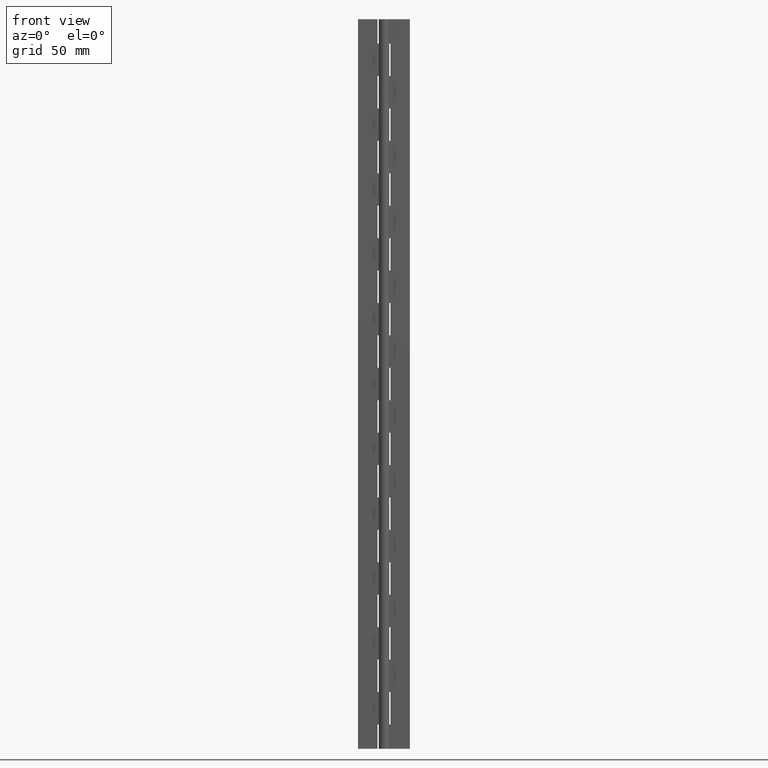
[diagram: clean part render]
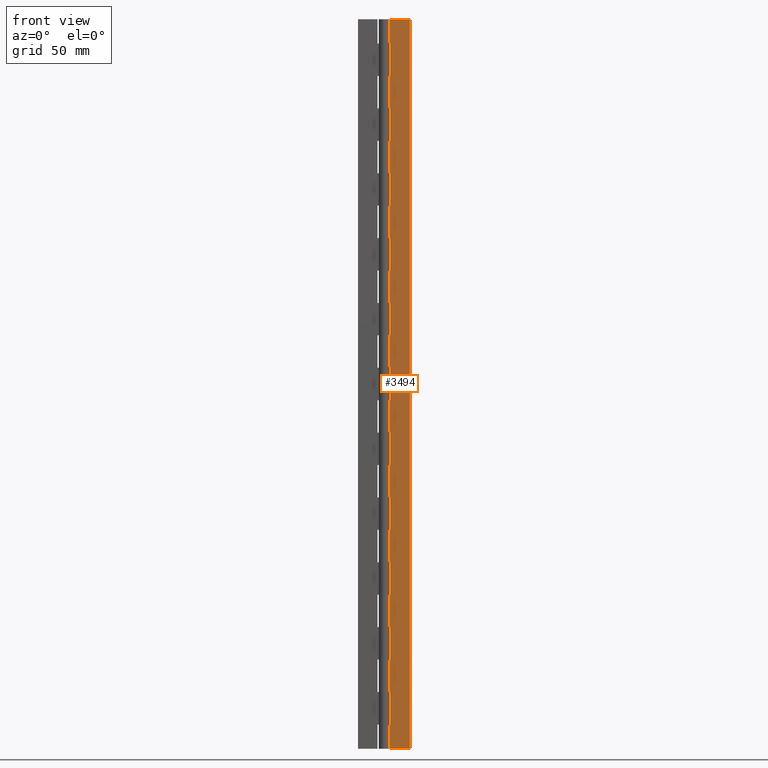
[diagram: same view with one face highlighted and labeled with its STEP entity id]
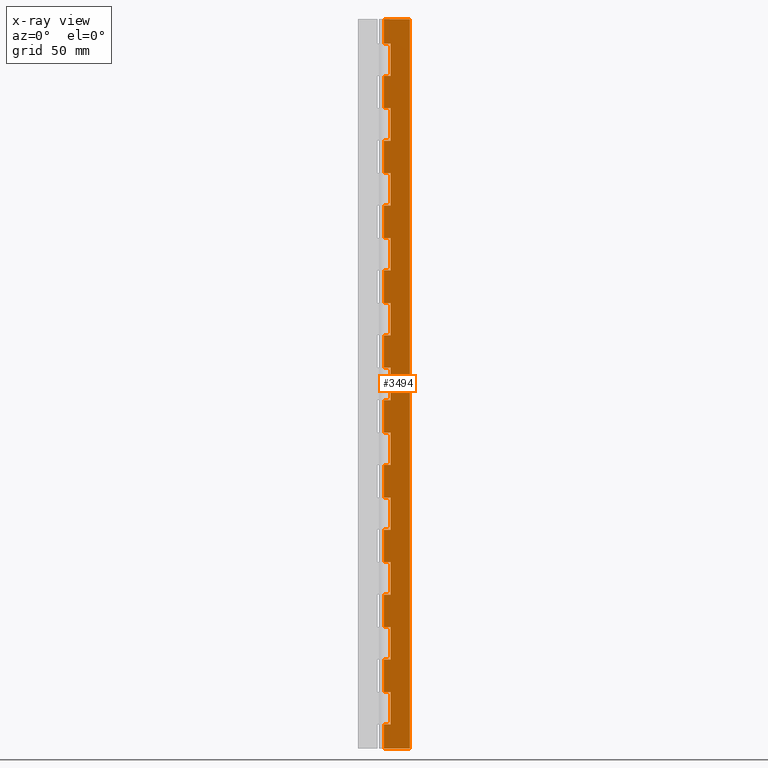
[diagram: x-ray of the same camera — body ghosted, the highlighted face saturated]
A machine part, front view. The second image highlights one B-rep face of the part: STEP entity #3494.
The next image is the same camera in x-ray: the body ghosted, the highlighted face saturated — about 0% of this face is hidden behind the body in this view.
In plain terms, the highlighted face is a freeform B-spline surface patch.
Its self-contained STEP definition (entity closure, byte-faithful):
#300=CARTESIAN_POINT('',(0.0,1.750000000000000,35.000021999999952));
#301=VERTEX_POINT('',#300);
#358=CARTESIAN_POINT('',(4.0,1.750000000000030,35.000021999999952));
#359=VERTEX_POINT('',#358);
#365=CARTESIAN_POINT('',(0.0,1.750000000000000,35.000021999999952));
#366=CARTESIAN_POINT('',(4.0,1.750000000000030,35.000021999999952));
#367=QUASI_UNIFORM_CURVE('',1,(#365,#366),.UNSPECIFIED.,.F.,.U.);
#368=EDGE_CURVE('',#301,#359,#367,.T.);
#386=CARTESIAN_POINT('',(4.0,1.750000000000030,15.000022000000000));
#387=VERTEX_POINT('',#386);
#393=CARTESIAN_POINT('',(4.0,1.750000000000030,35.000021999999952));
#394=CARTESIAN_POINT('',(4.0,1.750000000000030,15.000022000000000));
#395=QUASI_UNIFORM_CURVE('',1,(#393,#394),.UNSPECIFIED.,.F.,.U.);
#396=EDGE_CURVE('',#359,#387,#395,.T.);
#442=CARTESIAN_POINT('',(0.0,1.750000000000000,15.000021999999950));
#443=VERTEX_POINT('',#442);
#463=CARTESIAN_POINT('',(4.0,1.750000000000030,15.000022000000000));
#464=CARTESIAN_POINT('',(0.0,1.750000000000000,15.000021999999950));
#465=QUASI_UNIFORM_CURVE('',1,(#463,#464),.UNSPECIFIED.,.F.,.U.);
#466=EDGE_CURVE('',#387,#443,#465,.T.);
#476=CARTESIAN_POINT('',(0.0,1.750000000000000,75.000022000000001));
#477=VERTEX_POINT('',#476);
#534=CARTESIAN_POINT('',(4.0,1.750000000000030,75.000022000000001));
#535=VERTEX_POINT('',#534);
#541=CARTESIAN_POINT('',(0.0,1.750000000000000,75.000022000000001));
#542=CARTESIAN_POINT('',(4.0,1.750000000000030,75.000022000000001));
#543=QUASI_UNIFORM_CURVE('',1,(#541,#542),.UNSPECIFIED.,.F.,.U.);
#544=EDGE_CURVE('',#477,#535,#543,.T.);
#562=CARTESIAN_POINT('',(4.0,1.750000000000030,55.000022000000001));
#563=VERTEX_POINT('',#562);
#569=CARTESIAN_POINT('',(4.0,1.750000000000030,75.000022000000001));
#570=CARTESIAN_POINT('',(4.0,1.750000000000030,55.000022000000001));
#571=QUASI_UNIFORM_CURVE('',1,(#569,#570),.UNSPECIFIED.,.F.,.U.);
#572=EDGE_CURVE('',#535,#563,#571,.T.);
#618=CARTESIAN_POINT('',(0.0,1.750000000000000,55.000022000000001));
#619=VERTEX_POINT('',#618);
#639=CARTESIAN_POINT('',(4.0,1.750000000000030,55.000022000000001));
#640=CARTESIAN_POINT('',(0.0,1.750000000000000,55.000022000000001));
#641=QUASI_UNIFORM_CURVE('',1,(#639,#640),.UNSPECIFIED.,.F.,.U.);
#642=EDGE_CURVE('',#563,#619,#641,.T.);
#652=CARTESIAN_POINT('',(0.0,1.750000000000000,115.000022000000000));
#653=VERTEX_POINT('',#652);
#710=CARTESIAN_POINT('',(4.0,1.750000000000030,115.000022000000000));
#711=VERTEX_POINT('',#710);
#717=CARTESIAN_POINT('',(0.0,1.750000000000000,115.000022000000000));
#718=CARTESIAN_POINT('',(4.0,1.750000000000030,115.000022000000000));
#719=QUASI_UNIFORM_CURVE('',1,(#717,#718),.UNSPECIFIED.,.F.,.U.);
#720=EDGE_CURVE('',#653,#711,#719,.T.);
#738=CARTESIAN_POINT('',(4.0,1.750000000000030,95.000022000000001));
#739=VERTEX_POINT('',#738);
#745=CARTESIAN_POINT('',(4.0,1.750000000000030,115.000022000000000));
#746=CARTESIAN_POINT('',(4.0,1.750000000000030,95.000022000000001));
#747=QUASI_UNIFORM_CURVE('',1,(#745,#746),.UNSPECIFIED.,.F.,.U.);
#748=EDGE_CURVE('',#711,#739,#747,.T.);
#794=CARTESIAN_POINT('',(0.0,1.750000000000000,95.000022000000001));
#795=VERTEX_POINT('',#794);
#815=CARTESIAN_POINT('',(4.0,1.750000000000030,95.000022000000001));
#816=CARTESIAN_POINT('',(0.0,1.750000000000000,95.000022000000001));
#817=QUASI_UNIFORM_CURVE('',1,(#815,#816),.UNSPECIFIED.,.F.,.U.);
#818=EDGE_CURVE('',#739,#795,#817,.T.);
#828=CARTESIAN_POINT('',(0.0,1.750000000000000,155.000022000000000));
#829=VERTEX_POINT('',#828);
#886=CARTESIAN_POINT('',(4.0,1.750000000000030,155.000022000000000));
#887=VERTEX_POINT('',#886);
#893=CARTESIAN_POINT('',(0.0,1.750000000000000,155.000022000000000));
#894=CARTESIAN_POINT('',(4.0,1.750000000000030,155.000022000000000));
#895=QUASI_UNIFORM_CURVE('',1,(#893,#894),.UNSPECIFIED.,.F.,.U.);
#896=EDGE_CURVE('',#829,#887,#895,.T.);
#914=CARTESIAN_POINT('',(4.0,1.750000000000030,135.000022000000000));
#915=VERTEX_POINT('',#914);
#921=CARTESIAN_POINT('',(4.0,1.750000000000030,155.000022000000000));
#922=CARTESIAN_POINT('',(4.0,1.750000000000030,135.000022000000000));
#923=QUASI_UNIFORM_CURVE('',1,(#921,#922),.UNSPECIFIED.,.F.,.U.);
#924=EDGE_CURVE('',#887,#915,#923,.T.);
#970=CARTESIAN_POINT('',(0.0,1.750000000000000,135.000022000000000));
#971=VERTEX_POINT('',#970);
#991=CARTESIAN_POINT('',(4.0,1.750000000000030,135.000022000000000));
#992=CARTESIAN_POINT('',(0.0,1.750000000000000,135.000022000000000));
#993=QUASI_UNIFORM_CURVE('',1,(#991,#992),.UNSPECIFIED.,.F.,.U.);
#994=EDGE_CURVE('',#915,#971,#993,.T.);
#1004=CARTESIAN_POINT('',(0.0,1.750000000000000,195.000022000000000));
#1005=VERTEX_POINT('',#1004);
#1062=CARTESIAN_POINT('',(4.0,1.750000000000030,195.000022000000000));
#1063=VERTEX_POINT('',#1062);
#1069=CARTESIAN_POINT('',(0.0,1.750000000000000,195.000022000000000));
#1070=CARTESIAN_POINT('',(4.0,1.750000000000030,195.000022000000000));
#1071=QUASI_UNIFORM_CURVE('',1,(#1069,#1070),.UNSPECIFIED.,.F.,.U.);
#1072=EDGE_CURVE('',#1005,#1063,#1071,.T.);
#1090=CARTESIAN_POINT('',(4.0,1.750000000000030,175.000022000000000));
#1091=VERTEX_POINT('',#1090);
#1097=CARTESIAN_POINT('',(4.0,1.750000000000030,195.000022000000000));
#1098=CARTESIAN_POINT('',(4.0,1.750000000000030,175.000022000000000));
#1099=QUASI_UNIFORM_CURVE('',1,(#1097,#1098),.UNSPECIFIED.,.F.,.U.);
#1100=EDGE_CURVE('',#1063,#1091,#1099,.T.);
#1146=CARTESIAN_POINT('',(0.0,1.750000000000000,175.000022000000000));
#1147=VERTEX_POINT('',#1146);
#1167=CARTESIAN_POINT('',(4.0,1.750000000000030,175.000022000000000));
#1168=CARTESIAN_POINT('',(0.0,1.750000000000000,175.000022000000000));
#1169=QUASI_UNIFORM_CURVE('',1,(#1167,#1168),.UNSPECIFIED.,.F.,.U.);
#1170=EDGE_CURVE('',#1091,#1147,#1169,.T.);
#1180=CARTESIAN_POINT('',(0.0,1.750000000000000,235.000022000000000));
#1181=VERTEX_POINT('',#1180);
#1238=CARTESIAN_POINT('',(4.0,1.750000000000030,235.000022000000000));
#1239=VERTEX_POINT('',#1238);
#1245=CARTESIAN_POINT('',(0.0,1.750000000000000,235.000022000000000));
#1246=CARTESIAN_POINT('',(4.0,1.750000000000030,235.000022000000000));
#1247=QUASI_UNIFORM_CURVE('',1,(#1245,#1246),.UNSPECIFIED.,.F.,.U.);
#1248=EDGE_CURVE('',#1181,#1239,#1247,.T.);
#1266=CARTESIAN_POINT('',(4.0,1.750000000000030,215.000022000000000));
#1267=VERTEX_POINT('',#1266);
#1273=CARTESIAN_POINT('',(4.0,1.750000000000030,235.000022000000000));
#1274=CARTESIAN_POINT('',(4.0,1.750000000000030,215.000022000000000));
#1275=QUASI_UNIFORM_CURVE('',1,(#1273,#1274),.UNSPECIFIED.,.F.,.U.);
#1276=EDGE_CURVE('',#1239,#1267,#1275,.T.);
#1322=CARTESIAN_POINT('',(0.0,1.750000000000000,215.000022000000000));
#1323=VERTEX_POINT('',#1322);
#1343=CARTESIAN_POINT('',(4.0,1.750000000000030,215.000022000000000));
#1344=CARTESIAN_POINT('',(0.0,1.750000000000000,215.000022000000000));
#1345=QUASI_UNIFORM_CURVE('',1,(#1343,#1344),.UNSPECIFIED.,.F.,.U.);
#1346=EDGE_CURVE('',#1267,#1323,#1345,.T.);
#1356=CARTESIAN_POINT('',(0.0,1.750000000000000,275.000022000000000));
#1357=VERTEX_POINT('',#1356);
#1414=CARTESIAN_POINT('',(4.0,1.750000000000030,275.000022000000000));
#1415=VERTEX_POINT('',#1414);
#1421=CARTESIAN_POINT('',(0.0,1.750000000000000,275.000022000000000));
#1422=CARTESIAN_POINT('',(4.0,1.750000000000030,275.000022000000000));
#1423=QUASI_UNIFORM_CURVE('',1,(#1421,#1422),.UNSPECIFIED.,.F.,.U.);
#1424=EDGE_CURVE('',#1357,#1415,#1423,.T.);
#1442=CARTESIAN_POINT('',(4.0,1.750000000000030,255.000022000000000));
#1443=VERTEX_POINT('',#1442);
#1449=CARTESIAN_POINT('',(4.0,1.750000000000030,275.000022000000000));
#1450=CARTESIAN_POINT('',(4.0,1.750000000000030,255.000022000000000));
#1451=QUASI_UNIFORM_CURVE('',1,(#1449,#1450),.UNSPECIFIED.,.F.,.U.);
#1452=EDGE_CURVE('',#1415,#1443,#1451,.T.);
#1498=CARTESIAN_POINT('',(0.0,1.750000000000000,255.000022000000000));
#1499=VERTEX_POINT('',#1498);
#1519=CARTESIAN_POINT('',(4.0,1.750000000000030,255.000022000000000));
#1520=CARTESIAN_POINT('',(0.0,1.750000000000000,255.000022000000000));
#1521=QUASI_UNIFORM_CURVE('',1,(#1519,#1520),.UNSPECIFIED.,.F.,.U.);
#1522=EDGE_CURVE('',#1443,#1499,#1521,.T.);
#1532=CARTESIAN_POINT('',(0.0,1.750000000000000,315.000022000000000));
#1533=VERTEX_POINT('',#1532);
#1590=CARTESIAN_POINT('',(4.0,1.750000000000030,315.000022000000000));
#1591=VERTEX_POINT('',#1590);
#1597=CARTESIAN_POINT('',(0.0,1.750000000000000,315.000022000000000));
#1598=CARTESIAN_POINT('',(4.0,1.750000000000030,315.000022000000000));
#1599=QUASI_UNIFORM_CURVE('',1,(#1597,#1598),.UNSPECIFIED.,.F.,.U.);
#1600=EDGE_CURVE('',#1533,#1591,#1599,.T.);
#1618=CARTESIAN_POINT('',(4.0,1.750000000000030,295.000021999999890));
#1619=VERTEX_POINT('',#1618);
#1625=CARTESIAN_POINT('',(4.0,1.750000000000030,315.000022000000000));
#1626=CARTESIAN_POINT('',(4.0,1.750000000000030,295.000021999999890));
#1627=QUASI_UNIFORM_CURVE('',1,(#1625,#1626),.UNSPECIFIED.,.F.,.U.);
#1628=EDGE_CURVE('',#1591,#1619,#1627,.T.);
#1674=CARTESIAN_POINT('',(0.0,1.750000000000000,295.000021999999890));
#1675=VERTEX_POINT('',#1674);
#1695=CARTESIAN_POINT('',(4.0,1.750000000000030,295.000021999999890));
#1696=CARTESIAN_POINT('',(0.0,1.750000000000000,295.000021999999890));
#1697=QUASI_UNIFORM_CURVE('',1,(#1695,#1696),.UNSPECIFIED.,.F.,.U.);
#1698=EDGE_CURVE('',#1619,#1675,#1697,.T.);
#1708=CARTESIAN_POINT('',(0.0,1.750000000000000,355.000022000000000));
#1709=VERTEX_POINT('',#1708);
#1766=CARTESIAN_POINT('',(4.0,1.750000000000030,355.000022000000000));
#1767=VERTEX_POINT('',#1766);
#1773=CARTESIAN_POINT('',(0.0,1.750000000000000,355.000022000000000));
#1774=CARTESIAN_POINT('',(4.0,1.750000000000030,355.000022000000000));
#1775=QUASI_UNIFORM_CURVE('',1,(#1773,#1774),.UNSPECIFIED.,.F.,.U.);
#1776=EDGE_CURVE('',#1709,#1767,#1775,.T.);
#1794=CARTESIAN_POINT('',(4.0,1.750000000000030,335.000022000000000));
#1795=VERTEX_POINT('',#1794);
#1801=CARTESIAN_POINT('',(4.0,1.750000000000030,355.000022000000000));
#1802=CARTESIAN_POINT('',(4.0,1.750000000000030,335.000022000000000));
#1803=QUASI_UNIFORM_CURVE('',1,(#1801,#1802),.UNSPECIFIED.,.F.,.U.);
#1804=EDGE_CURVE('',#1767,#1795,#1803,.T.);
#1850=CARTESIAN_POINT('',(0.0,1.750000000000000,335.000022000000000));
#1851=VERTEX_POINT('',#1850);
#1871=CARTESIAN_POINT('',(4.0,1.750000000000030,335.000022000000000));
#1872=CARTESIAN_POINT('',(0.0,1.750000000000000,335.000022000000000));
#1873=QUASI_UNIFORM_CURVE('',1,(#1871,#1872),.UNSPECIFIED.,.F.,.U.);
#1874=EDGE_CURVE('',#1795,#1851,#1873,.T.);
#1884=CARTESIAN_POINT('',(0.0,1.750000000000000,395.000022000000000));
#1885=VERTEX_POINT('',#1884);
#1942=CARTESIAN_POINT('',(4.0,1.750000000000030,395.000022000000000));
#1943=VERTEX_POINT('',#1942);
#1949=CARTESIAN_POINT('',(0.0,1.750000000000000,395.000022000000000));
#1950=CARTESIAN_POINT('',(4.0,1.750000000000030,395.000022000000000));
#1951=QUASI_UNIFORM_CURVE('',1,(#1949,#1950),.UNSPECIFIED.,.F.,.U.);
#1952=EDGE_CURVE('',#1885,#1943,#1951,.T.);
#1970=CARTESIAN_POINT('',(4.0,1.750000000000030,375.000022000000000));
#1971=VERTEX_POINT('',#1970);
#1977=CARTESIAN_POINT('',(4.0,1.750000000000030,395.000022000000000));
#1978=CARTESIAN_POINT('',(4.0,1.750000000000030,375.000022000000000));
#1979=QUASI_UNIFORM_CURVE('',1,(#1977,#1978),.UNSPECIFIED.,.F.,.U.);
#1980=EDGE_CURVE('',#1943,#1971,#1979,.T.);
#2026=CARTESIAN_POINT('',(0.0,1.750000000000000,375.000022000000000));
#2027=VERTEX_POINT('',#2026);
#2047=CARTESIAN_POINT('',(4.0,1.750000000000030,375.000022000000000));
#2048=CARTESIAN_POINT('',(0.0,1.750000000000000,375.000022000000000));
#2049=QUASI_UNIFORM_CURVE('',1,(#2047,#2048),.UNSPECIFIED.,.F.,.U.);
#2050=EDGE_CURVE('',#1971,#2027,#2049,.T.);
#2060=CARTESIAN_POINT('',(0.0,1.750000000000000,435.000022000000000));
#2061=VERTEX_POINT('',#2060);
#2118=CARTESIAN_POINT('',(4.0,1.750000000000030,435.000022000000000));
#2119=VERTEX_POINT('',#2118);
#2125=CARTESIAN_POINT('',(0.0,1.750000000000000,435.000022000000000));
#2126=CARTESIAN_POINT('',(4.0,1.750000000000030,435.000022000000000));
#2127=QUASI_UNIFORM_CURVE('',1,(#2125,#2126),.UNSPECIFIED.,.F.,.U.);
#2128=EDGE_CURVE('',#2061,#2119,#2127,.T.);
#2146=CARTESIAN_POINT('',(4.0,1.750000000000030,415.000022000000000));
#2147=VERTEX_POINT('',#2146);
#2153=CARTESIAN_POINT('',(4.0,1.750000000000030,435.000022000000000));
#2154=CARTESIAN_POINT('',(4.0,1.750000000000030,415.000022000000000));
#2155=QUASI_UNIFORM_CURVE('',1,(#2153,#2154),.UNSPECIFIED.,.F.,.U.);
#2156=EDGE_CURVE('',#2119,#2147,#2155,.T.);
#2202=CARTESIAN_POINT('',(0.0,1.750000000000000,415.000022000000000));
#2203=VERTEX_POINT('',#2202);
#2223=CARTESIAN_POINT('',(4.0,1.750000000000030,415.000022000000000));
#2224=CARTESIAN_POINT('',(0.0,1.750000000000000,415.000022000000000));
#2225=QUASI_UNIFORM_CURVE('',1,(#2223,#2224),.UNSPECIFIED.,.F.,.U.);
#2226=EDGE_CURVE('',#2147,#2203,#2225,.T.);
#2245=CARTESIAN_POINT('',(16.0,1.750000000000000,0.0));
#2246=VERTEX_POINT('',#2245);
#2252=CARTESIAN_POINT('',(0.0,1.750000000000000,0.0));
#2253=VERTEX_POINT('',#2252);
#2254=CARTESIAN_POINT('',(16.0,1.750000000000000,0.0));
#2255=CARTESIAN_POINT('',(0.0,1.750000000000000,0.0));
#2256=QUASI_UNIFORM_CURVE('',1,(#2254,#2255),.UNSPECIFIED.,.F.,.U.);
#2257=EDGE_CURVE('',#2246,#2253,#2256,.T.);
#2351=CARTESIAN_POINT('',(0.0,1.750000000000000,450.000022000000000));
#2352=VERTEX_POINT('',#2351);
#2372=CARTESIAN_POINT('',(16.0,1.750000000000000,450.000022000000000));
#2373=VERTEX_POINT('',#2372);
#2374=CARTESIAN_POINT('',(16.0,1.750000000000000,450.000022000000000));
#2375=CARTESIAN_POINT('',(0.0,1.750000000000000,450.000022000000000));
#2376=QUASI_UNIFORM_CURVE('',1,(#2374,#2375),.UNSPECIFIED.,.F.,.U.);
#2377=EDGE_CURVE('',#2373,#2352,#2376,.T.);
#2399=CARTESIAN_POINT('',(16.0,1.750000000000000,450.000022000000000));
#2400=CARTESIAN_POINT('',(16.0,1.750000000000000,0.0));
#2401=QUASI_UNIFORM_CURVE('',1,(#2399,#2400),.UNSPECIFIED.,.F.,.U.);
#2402=EDGE_CURVE('',#2373,#2246,#2401,.T.);
#2483=CARTESIAN_POINT('',(0.0,1.750000000000000,450.000022000000000));
#2484=CARTESIAN_POINT('',(0.0,1.750000000000000,435.000022000000000));
#2485=QUASI_UNIFORM_CURVE('',1,(#2483,#2484),.UNSPECIFIED.,.F.,.U.);
#2486=EDGE_CURVE('',#2352,#2061,#2485,.T.);
#2569=CARTESIAN_POINT('',(0.0,1.750000000000000,415.000022000000000));
#2570=CARTESIAN_POINT('',(0.0,1.750000000000000,395.000022000000000));
#2571=QUASI_UNIFORM_CURVE('',1,(#2569,#2570),.UNSPECIFIED.,.F.,.U.);
#2572=EDGE_CURVE('',#2203,#1885,#2571,.T.);
#2655=CARTESIAN_POINT('',(0.0,1.750000000000000,375.000022000000000));
#2656=CARTESIAN_POINT('',(0.0,1.750000000000000,355.000022000000000));
#2657=QUASI_UNIFORM_CURVE('',1,(#2655,#2656),.UNSPECIFIED.,.F.,.U.);
#2658=EDGE_CURVE('',#2027,#1709,#2657,.T.);
#2741=CARTESIAN_POINT('',(0.0,1.750000000000000,335.000022000000000));
#2742=CARTESIAN_POINT('',(0.0,1.750000000000000,315.000022000000000));
#2743=QUASI_UNIFORM_CURVE('',1,(#2741,#2742),.UNSPECIFIED.,.F.,.U.);
#2744=EDGE_CURVE('',#1851,#1533,#2743,.T.);
#2827=CARTESIAN_POINT('',(0.0,1.750000000000000,295.000021999999890));
#2828=CARTESIAN_POINT('',(0.0,1.750000000000000,275.000022000000000));
#2829=QUASI_UNIFORM_CURVE('',1,(#2827,#2828),.UNSPECIFIED.,.F.,.U.);
#2830=EDGE_CURVE('',#1675,#1357,#2829,.T.);
#2913=CARTESIAN_POINT('',(0.0,1.750000000000000,255.000022000000000));
#2914=CARTESIAN_POINT('',(0.0,1.750000000000000,235.000022000000000));
#2915=QUASI_UNIFORM_CURVE('',1,(#2913,#2914),.UNSPECIFIED.,.F.,.U.);
#2916=EDGE_CURVE('',#1499,#1181,#2915,.T.);
#2999=CARTESIAN_POINT('',(0.0,1.750000000000000,215.000022000000000));
#3000=CARTESIAN_POINT('',(0.0,1.750000000000000,195.000022000000000));
#3001=QUASI_UNIFORM_CURVE('',1,(#2999,#3000),.UNSPECIFIED.,.F.,.U.);
#3002=EDGE_CURVE('',#1323,#1005,#3001,.T.);
#3085=CARTESIAN_POINT('',(0.0,1.750000000000000,175.000022000000000));
#3086=CARTESIAN_POINT('',(0.0,1.750000000000000,155.000022000000000));
#3087=QUASI_UNIFORM_CURVE('',1,(#3085,#3086),.UNSPECIFIED.,.F.,.U.);
#3088=EDGE_CURVE('',#1147,#829,#3087,.T.);
#3171=CARTESIAN_POINT('',(0.0,1.750000000000000,135.000022000000000));
#3172=CARTESIAN_POINT('',(0.0,1.750000000000000,115.000022000000000));
#3173=QUASI_UNIFORM_CURVE('',1,(#3171,#3172),.UNSPECIFIED.,.F.,.U.);
#3174=EDGE_CURVE('',#971,#653,#3173,.T.);
#3257=CARTESIAN_POINT('',(0.0,1.750000000000000,95.000022000000001));
#3258=CARTESIAN_POINT('',(0.0,1.750000000000000,75.000022000000001));
#3259=QUASI_UNIFORM_CURVE('',1,(#3257,#3258),.UNSPECIFIED.,.F.,.U.);
#3260=EDGE_CURVE('',#795,#477,#3259,.T.);
#3396=CARTESIAN_POINT('',(0.0,1.750000000000000,55.000022000000001));
#3397=CARTESIAN_POINT('',(0.0,1.750000000000000,35.000021999999952));
#3398=QUASI_UNIFORM_CURVE('',1,(#3396,#3397),.UNSPECIFIED.,.F.,.U.);
#3399=EDGE_CURVE('',#619,#301,#3398,.T.);
#3431=CARTESIAN_POINT('',(0.0,1.750000000000000,15.000021999999950));
#3432=CARTESIAN_POINT('',(0.0,1.750000000000000,0.0));
#3433=QUASI_UNIFORM_CURVE('',1,(#3431,#3432),.UNSPECIFIED.,.F.,.U.);
#3434=EDGE_CURVE('',#443,#2253,#3433,.T.);
#3439=CARTESIAN_POINT('',(-0.799199968988895,1.750000000000000,472.477530675269180));
#3440=CARTESIAN_POINT('',(-0.799199968988895,1.750000000000000,-22.477512698582810));
#3441=CARTESIAN_POINT('',(16.799200398142339,1.750000000000000,472.477530675269180));
#3442=CARTESIAN_POINT('',(16.799200398142339,1.750000000000000,-22.477512698582810));
#3443=B_SPLINE_SURFACE_WITH_KNOTS('',1,1,((#3439,#3441),(#3440,#3442)),.UNSPECIFIED.,.F.,.F.,.U.,(2,2),(2,2),(0.0,494.955043373852110),(0.0,17.598400367131230),.UNSPECIFIED.);
#3444=ORIENTED_EDGE('',*,*,#396,.T.);
#3445=ORIENTED_EDGE('',*,*,#466,.T.);
#3446=ORIENTED_EDGE('',*,*,#3434,.T.);
#3447=ORIENTED_EDGE('',*,*,#2257,.F.);
#3448=ORIENTED_EDGE('',*,*,#2402,.F.);
#3449=ORIENTED_EDGE('',*,*,#2377,.T.);
#3450=ORIENTED_EDGE('',*,*,#2486,.T.);
#3451=ORIENTED_EDGE('',*,*,#2128,.T.);
#3452=ORIENTED_EDGE('',*,*,#2156,.T.);
#3453=ORIENTED_EDGE('',*,*,#2226,.T.);
#3454=ORIENTED_EDGE('',*,*,#2572,.T.);
#3455=ORIENTED_EDGE('',*,*,#1952,.T.);
#3456=ORIENTED_EDGE('',*,*,#1980,.T.);
#3457=ORIENTED_EDGE('',*,*,#2050,.T.);
#3458=ORIENTED_EDGE('',*,*,#2658,.T.);
#3459=ORIENTED_EDGE('',*,*,#1776,.T.);
#3460=ORIENTED_EDGE('',*,*,#1804,.T.);
#3461=ORIENTED_EDGE('',*,*,#1874,.T.);
#3462=ORIENTED_EDGE('',*,*,#2744,.T.);
#3463=ORIENTED_EDGE('',*,*,#1600,.T.);
#3464=ORIENTED_EDGE('',*,*,#1628,.T.);
#3465=ORIENTED_EDGE('',*,*,#1698,.T.);
#3466=ORIENTED_EDGE('',*,*,#2830,.T.);
#3467=ORIENTED_EDGE('',*,*,#1424,.T.);
#3468=ORIENTED_EDGE('',*,*,#1452,.T.);
#3469=ORIENTED_EDGE('',*,*,#1522,.T.);
#3470=ORIENTED_EDGE('',*,*,#2916,.T.);
#3471=ORIENTED_EDGE('',*,*,#1248,.T.);
#3472=ORIENTED_EDGE('',*,*,#1276,.T.);
#3473=ORIENTED_EDGE('',*,*,#1346,.T.);
#3474=ORIENTED_EDGE('',*,*,#3002,.T.);
#3475=ORIENTED_EDGE('',*,*,#1072,.T.);
#3476=ORIENTED_EDGE('',*,*,#1100,.T.);
#3477=ORIENTED_EDGE('',*,*,#1170,.T.);
#3478=ORIENTED_EDGE('',*,*,#3088,.T.);
#3479=ORIENTED_EDGE('',*,*,#896,.T.);
#3480=ORIENTED_EDGE('',*,*,#924,.T.);
#3481=ORIENTED_EDGE('',*,*,#994,.T.);
#3482=ORIENTED_EDGE('',*,*,#3174,.T.);
#3483=ORIENTED_EDGE('',*,*,#720,.T.);
#3484=ORIENTED_EDGE('',*,*,#748,.T.);
#3485=ORIENTED_EDGE('',*,*,#818,.T.);
#3486=ORIENTED_EDGE('',*,*,#3260,.T.);
#3487=ORIENTED_EDGE('',*,*,#544,.T.);
#3488=ORIENTED_EDGE('',*,*,#572,.T.);
#3489=ORIENTED_EDGE('',*,*,#642,.T.);
#3490=ORIENTED_EDGE('',*,*,#3399,.T.);
#3491=ORIENTED_EDGE('',*,*,#368,.T.);
#3492=EDGE_LOOP('',(#3444,#3445,#3446,#3447,#3448,#3449,#3450,#3451,#3452,#3453,#3454,#3455,#3456,#3457,#3458,#3459,#3460,#3461,#3462,#3463,#3464,#3465,#3466,#3467,#3468,#3469,#3470,#3471,#3472,#3473,#3474,#3475,#3476,#3477,#3478,#3479,#3480,#3481,#3482,#3483,#3484,#3485,#3486,#3487,#3488,#3489,#3490,#3491));
#3493=FACE_OUTER_BOUND('',#3492,.T.);
#3494=ADVANCED_FACE('',(#3493),#3443,.T.);